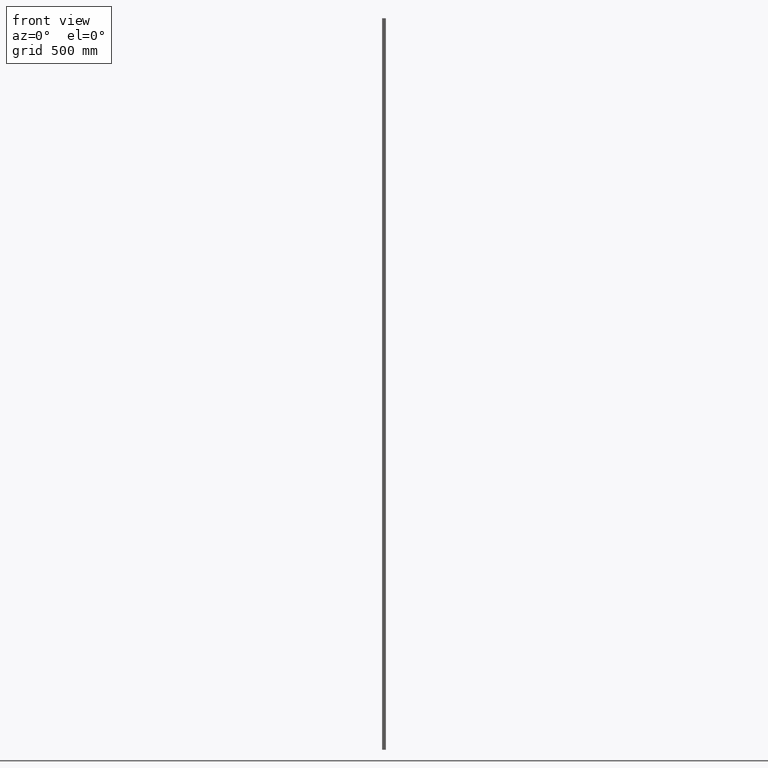
[diagram: clean part render]
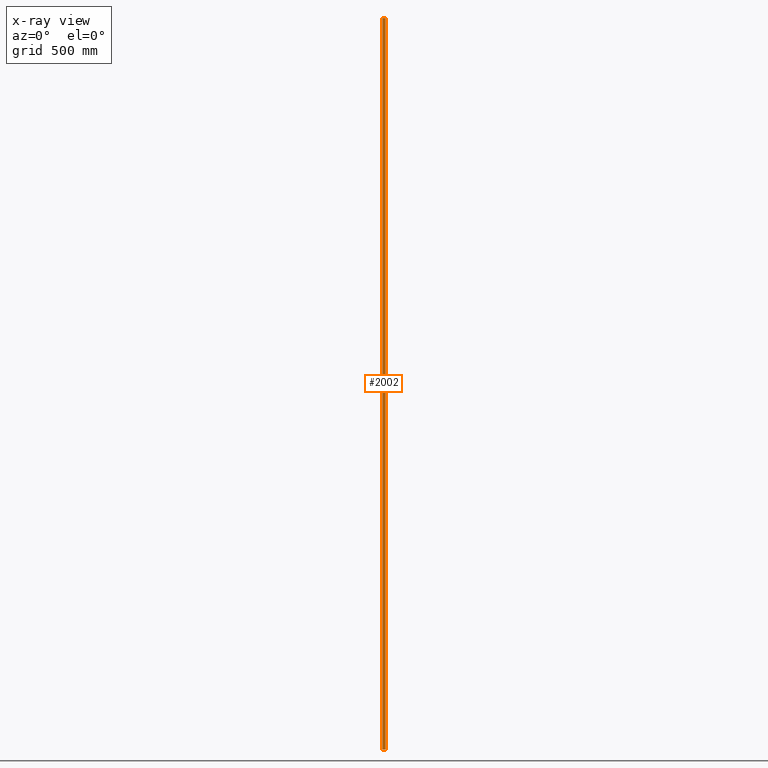
[diagram: x-ray — body ghosted, one internal face saturated and labeled with its STEP entity id]
A machine part, front view, then the same camera in x-ray: the body is ghosted and one INTERNAL B-rep face — a face not visible from any outside direction — is saturated and labeled: STEP entity #2002.
In plain terms, the highlighted planar face has unit normal (0, -1, 0).
Its self-contained STEP definition (entity closure, byte-faithful):
#217 = CARTESIAN_POINT ( 'NONE',  ( 5.549999999999998934, 6.000000000000000000, 1500.000000000000000 ) ) ;
#726 = EDGE_CURVE ( 'NONE', #3431, #1467, #2752, .T. ) ;
#1009 = CARTESIAN_POINT ( 'NONE',  ( -5.549999999999998934, 6.000000000000000000, -1500.000000000000000 ) ) ;
#1456 = CARTESIAN_POINT ( 'NONE',  ( -5.549999999999998934, 6.000000000000000000, -1500.000000000000000 ) ) ;
#1467 = VERTEX_POINT ( 'NONE', #1481 ) ;
#1481 = CARTESIAN_POINT ( 'NONE',  ( -5.549999999999998934, 6.000000000000000000, 1500.000000000000000 ) ) ;
#2002 = ADVANCED_FACE ( 'NONE', ( #16551 ), #12428, .F. ) ;
#2146 = ORIENTED_EDGE ( 'NONE', *, *, #726, .F. ) ;
#2356 = DIRECTION ( 'NONE',  ( -1.000000000000000000, -0.000000000000000000, -0.000000000000000000 ) ) ;
#2752 = LINE ( 'NONE', #16663, #10278 ) ;
#3431 = VERTEX_POINT ( 'NONE', #217 ) ;
#3797 = CARTESIAN_POINT ( 'NONE',  ( -5.549999999999998934, 6.000000000000000000, 1500.000000000000000 ) ) ;
#3867 = ORIENTED_EDGE ( 'NONE', *, *, #14223, .F. ) ;
#5024 = AXIS2_PLACEMENT_3D ( 'NONE', #13542, #14985, #16398 ) ;
#5057 = ORIENTED_EDGE ( 'NONE', *, *, #14896, .T. ) ;
#5297 = LINE ( 'NONE', #3797, #6830 ) ;
#5995 = VERTEX_POINT ( 'NONE', #1009 ) ;
#6493 = LINE ( 'NONE', #1456, #17301 ) ;
#6830 = VECTOR ( 'NONE', #13816, 1000.000000000000000 ) ;
#7696 = CARTESIAN_POINT ( 'NONE',  ( 5.549999999999998934, 6.000000000000000000, 1500.000000000000000 ) ) ;
#7763 = DIRECTION ( 'NONE',  ( -0.000000000000000000, -0.000000000000000000, -1.000000000000000000 ) ) ;
#8698 = LINE ( 'NONE', #7696, #10481 ) ;
#10278 = VECTOR ( 'NONE', #2356, 1000.000000000000000 ) ;
#10386 = VERTEX_POINT ( 'NONE', #15373 ) ;
#10481 = VECTOR ( 'NONE', #7763, 1000.000000000000000 ) ;
#11169 = DIRECTION ( 'NONE',  ( -1.000000000000000000, -0.000000000000000000, -0.000000000000000000 ) ) ;
#12428 = PLANE ( 'NONE',  #5024 ) ;
#12965 = EDGE_LOOP ( 'NONE', ( #13819, #3867, #2146, #5057 ) ) ;
#13542 = CARTESIAN_POINT ( 'NONE',  ( -5.549999999999998934, 6.000000000000000000, 1500.000000000000000 ) ) ;
#13816 = DIRECTION ( 'NONE',  ( -0.000000000000000000, -0.000000000000000000, -1.000000000000000000 ) ) ;
#13819 = ORIENTED_EDGE ( 'NONE', *, *, #14692, .T. ) ;
#14223 = EDGE_CURVE ( 'NONE', #1467, #5995, #5297, .T. ) ;
#14692 = EDGE_CURVE ( 'NONE', #10386, #5995, #6493, .T. ) ;
#14896 = EDGE_CURVE ( 'NONE', #3431, #10386, #8698, .T. ) ;
#14985 = DIRECTION ( 'NONE',  ( 0.000000000000000000, -1.000000000000000000, 0.000000000000000000 ) ) ;
#15373 = CARTESIAN_POINT ( 'NONE',  ( 5.549999999999998934, 6.000000000000000000, -1500.000000000000000 ) ) ;
#16398 = DIRECTION ( 'NONE',  ( 0.000000000000000000, -0.000000000000000000, -1.000000000000000000 ) ) ;
#16551 = FACE_OUTER_BOUND ( 'NONE', #12965, .T. ) ;
#16663 = CARTESIAN_POINT ( 'NONE',  ( -5.549999999999998934, 6.000000000000000000, 1500.000000000000000 ) ) ;
#17301 = VECTOR ( 'NONE', #11169, 1000.000000000000000 ) ;